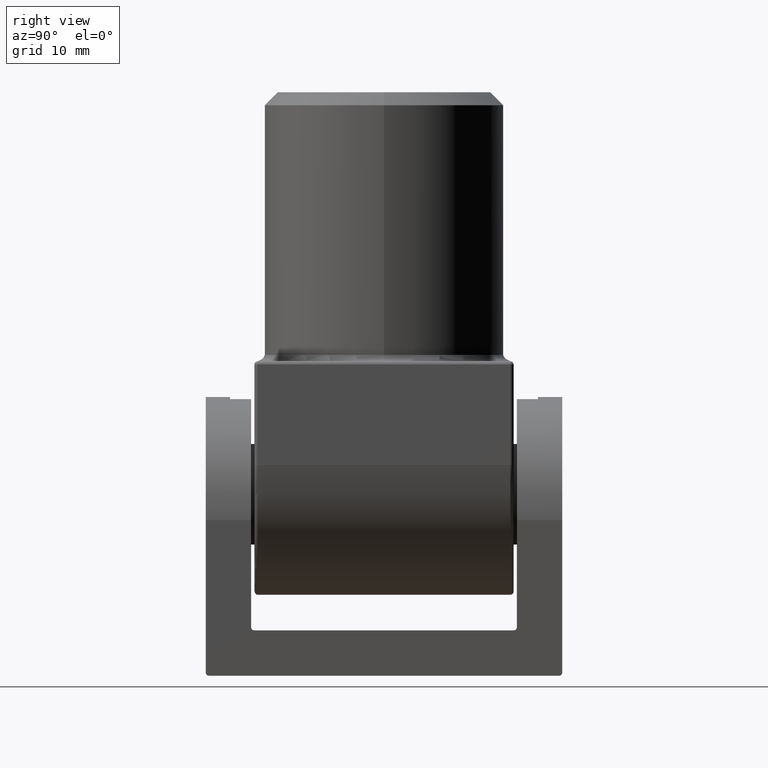
[diagram: clean part render]
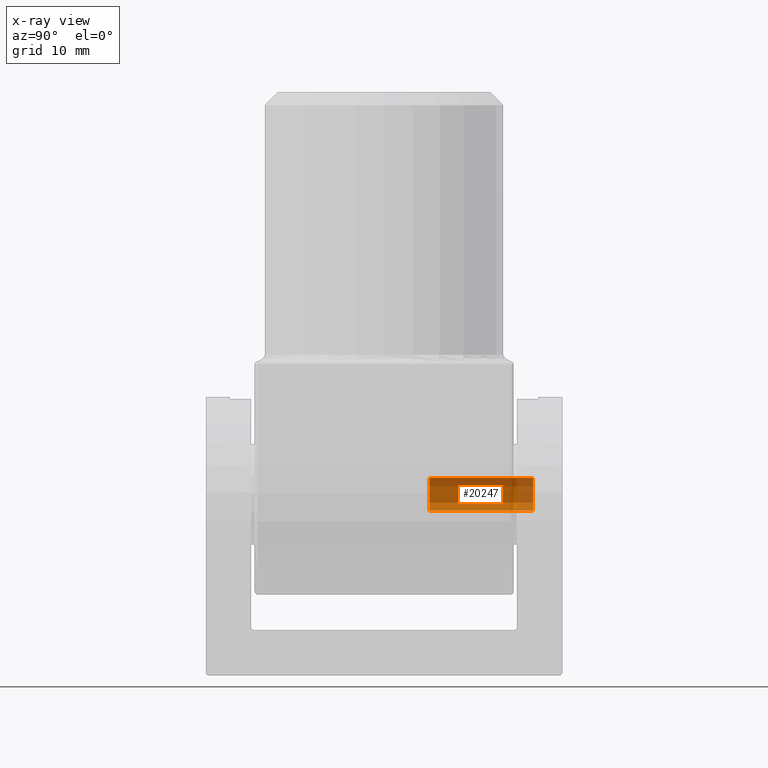
[diagram: x-ray — body ghosted, one internal face saturated and labeled with its STEP entity id]
A machine part, right view, then the same camera in x-ray: the body is ghosted and one INTERNAL B-rep face — a face not visible from any outside direction — is saturated and labeled: STEP entity #20247.
In plain terms, the highlighted cylindrical surface (edge-blend (fillet) strip) has radius 2.5 mm, axis along (0, 1, 0).
Its self-contained STEP definition (entity closure, byte-faithful):
#177 = DIRECTION ( 'NONE',  ( 0.000000000000000000, 0.000000000000000000, 1.000000000000000000 ) ) ;
#300 = CARTESIAN_POINT ( 'NONE',  ( 0.000000000000000000, 6.999999999999999112, -20.50000000000000355 ) ) ;
#1014 = FACE_OUTER_BOUND ( 'NONE', #6971, .T. ) ;
#1670 = VERTEX_POINT ( 'NONE', #20000 ) ;
#2003 = LINE ( 'NONE', #3278, #14086 ) ;
#2434 = CIRCLE ( 'NONE', #5655, 2.499999999999995115 ) ;
#2736 = EDGE_CURVE ( 'NONE', #15727, #16034, #18688, .T. ) ;
#2895 = CARTESIAN_POINT ( 'NONE',  ( 3.061616997868379197E-16, 23.50000000000000000, -23.00000000000000000 ) ) ;
#3267 = DIRECTION ( 'NONE',  ( -0.000000000000000000, 1.000000000000000000, -0.000000000000000000 ) ) ;
#3278 = CARTESIAN_POINT ( 'NONE',  ( 0.000000000000000000, 23.50000000000000000, -18.00000000000001066 ) ) ;
#5655 = AXIS2_PLACEMENT_3D ( 'NONE', #6422, #8005, #177 ) ;
#6422 = CARTESIAN_POINT ( 'NONE',  ( 0.000000000000000000, 22.99999999999998224, -20.50000000000000355 ) ) ;
#6464 = VERTEX_POINT ( 'NONE', #18485 ) ;
#6920 = ORIENTED_EDGE ( 'NONE', *, *, #12618, .T. ) ;
#6971 = EDGE_LOOP ( 'NONE', ( #13928, #6920, #11407, #17314 ) ) ;
#7138 = AXIS2_PLACEMENT_3D ( 'NONE', #300, #3267, #16030 ) ;
#8005 = DIRECTION ( 'NONE',  ( 0.000000000000000000, 1.000000000000000000, 0.000000000000000000 ) ) ;
#9608 = DIRECTION ( 'NONE',  ( 0.000000000000000000, 0.000000000000000000, 1.000000000000000000 ) ) ;
#10037 = CARTESIAN_POINT ( 'NONE',  ( 0.000000000000000000, 6.999999999999999112, -18.00000000000001066 ) ) ;
#10910 = EDGE_CURVE ( 'NONE', #1670, #6464, #2434, .T. ) ;
#11407 = ORIENTED_EDGE ( 'NONE', *, *, #10910, .T. ) ;
#12618 = EDGE_CURVE ( 'NONE', #15727, #1670, #13469, .T. ) ;
#13469 = LINE ( 'NONE', #2895, #13969 ) ;
#13928 = ORIENTED_EDGE ( 'NONE', *, *, #2736, .F. ) ;
#13969 = VECTOR ( 'NONE', #15588, 1000.000000000000000 ) ;
#14086 = VECTOR ( 'NONE', #19153, 1000.000000000000000 ) ;
#14172 = DIRECTION ( 'NONE',  ( -0.000000000000000000, 1.000000000000000000, -0.000000000000000000 ) ) ;
#14277 = AXIS2_PLACEMENT_3D ( 'NONE', #14458, #14172, #9608 ) ;
#14458 = CARTESIAN_POINT ( 'NONE',  ( 0.000000000000000000, 23.50000000000000000, -20.50000000000000355 ) ) ;
#15378 = CARTESIAN_POINT ( 'NONE',  ( 3.061616997868377718E-16, 6.999999999999999112, -23.00000000000000000 ) ) ;
#15566 = CYLINDRICAL_SURFACE ( 'NONE', #14277, 2.499999999999995115 ) ;
#15588 = DIRECTION ( 'NONE',  ( -0.000000000000000000, 1.000000000000000000, -0.000000000000000000 ) ) ;
#15727 = VERTEX_POINT ( 'NONE', #15378 ) ;
#16030 = DIRECTION ( 'NONE',  ( 0.000000000000000000, 0.000000000000000000, 1.000000000000000000 ) ) ;
#16034 = VERTEX_POINT ( 'NONE', #10037 ) ;
#17314 = ORIENTED_EDGE ( 'NONE', *, *, #20140, .F. ) ;
#18485 = CARTESIAN_POINT ( 'NONE',  ( 0.000000000000000000, 22.99999999999998224, -18.00000000000001066 ) ) ;
#18688 = CIRCLE ( 'NONE', #7138, 2.499999999999995115 ) ;
#19153 = DIRECTION ( 'NONE',  ( -0.000000000000000000, 1.000000000000000000, -0.000000000000000000 ) ) ;
#20000 = CARTESIAN_POINT ( 'NONE',  ( 3.061616997868381169E-16, 22.99999999999998224, -23.00000000000000000 ) ) ;
#20140 = EDGE_CURVE ( 'NONE', #16034, #6464, #2003, .T. ) ;
#20247 = ADVANCED_FACE ( 'NONE', ( #1014 ), #15566, .F. ) ;